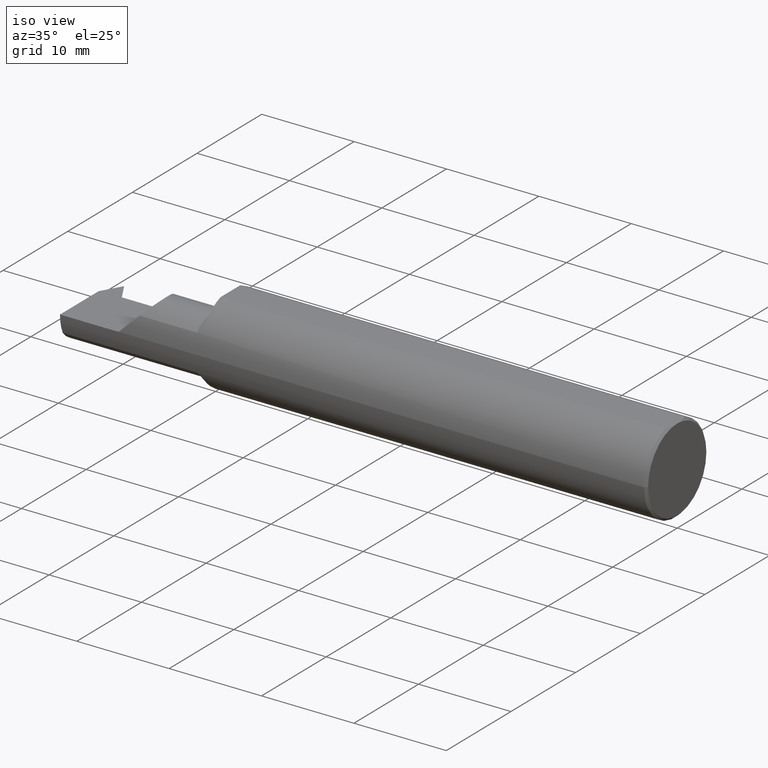
[diagram: clean part render]
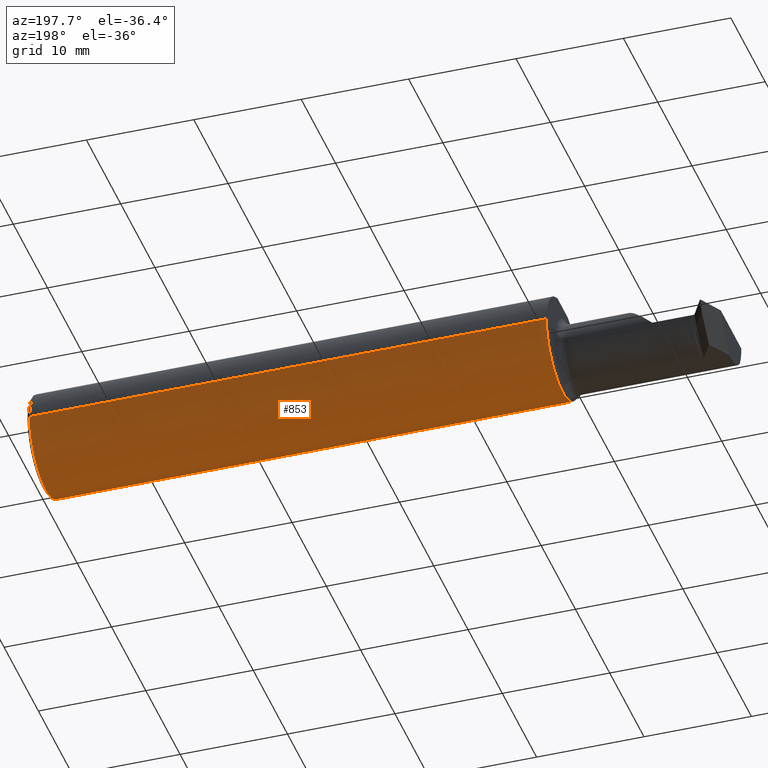
[diagram: tour spotlight — one face highlighted and labeled with its STEP entity id]
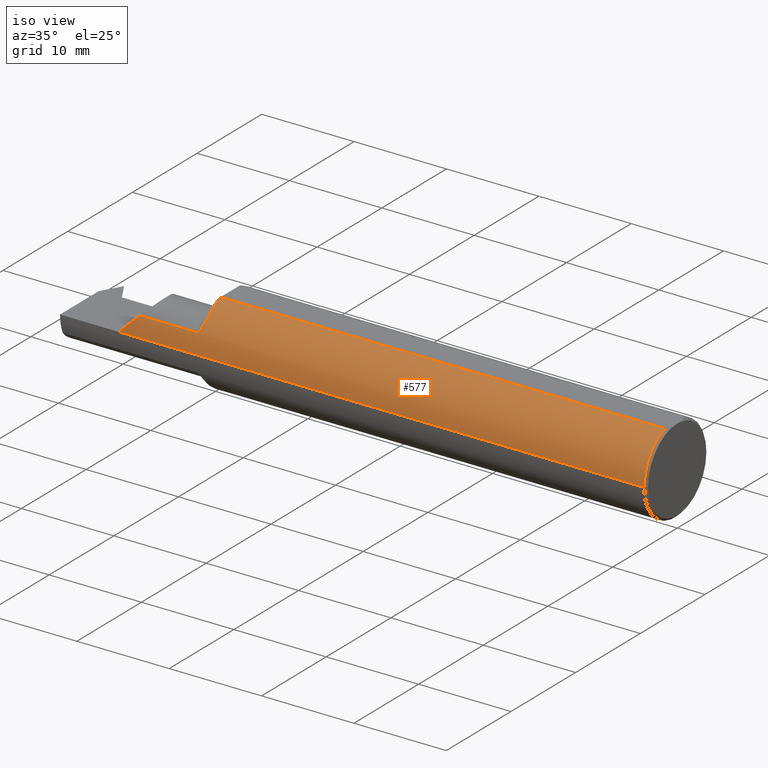
[diagram: tour spotlight — one face highlighted and labeled with its STEP entity id]
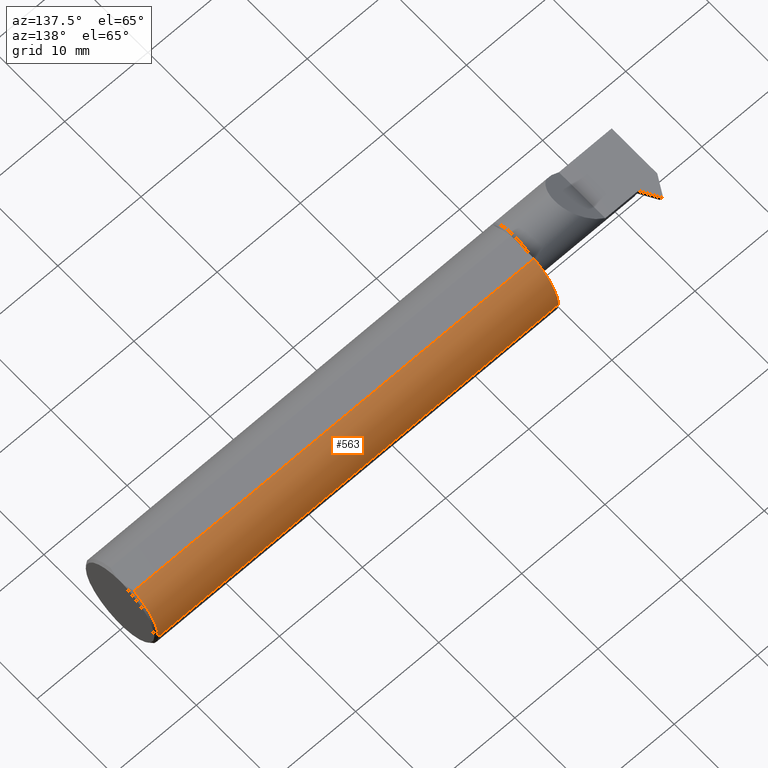
[diagram: tour spotlight — one face highlighted and labeled with its STEP entity id]
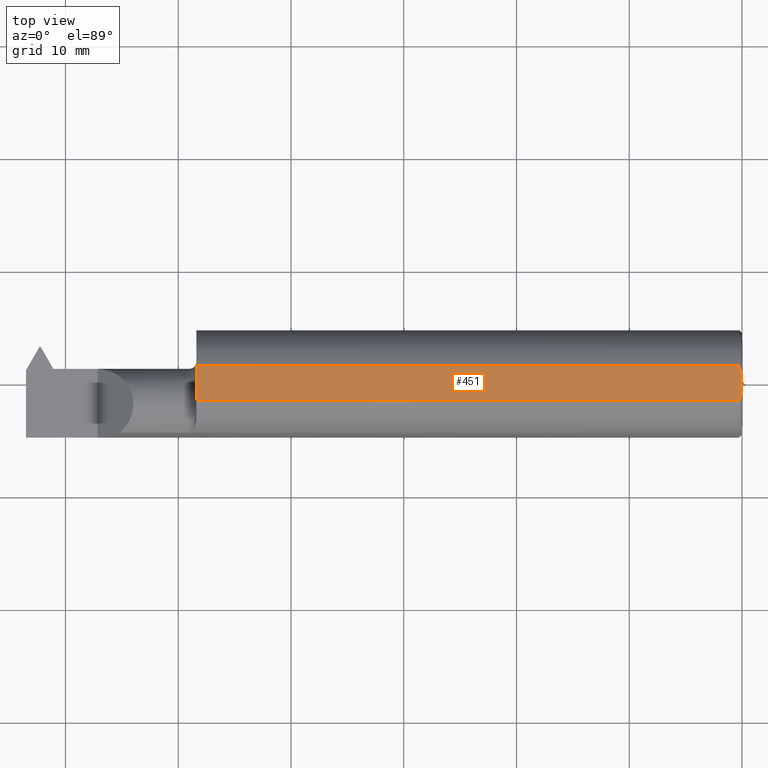
[diagram: tour spotlight — one face highlighted and labeled with its STEP entity id]
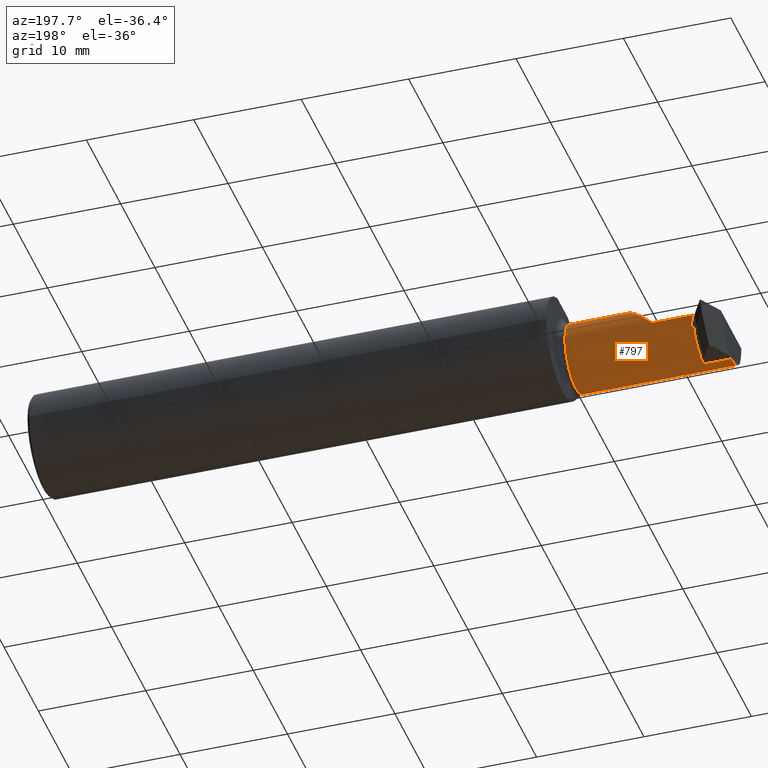
[diagram: tour spotlight — one face highlighted and labeled with its STEP entity id]
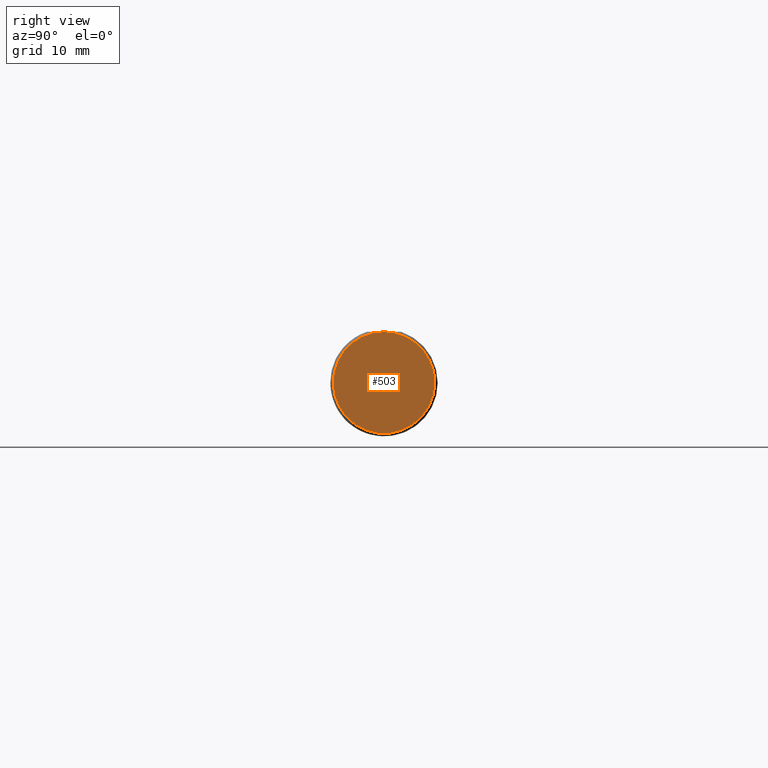
[diagram: tour spotlight — one face highlighted and labeled with its STEP entity id]
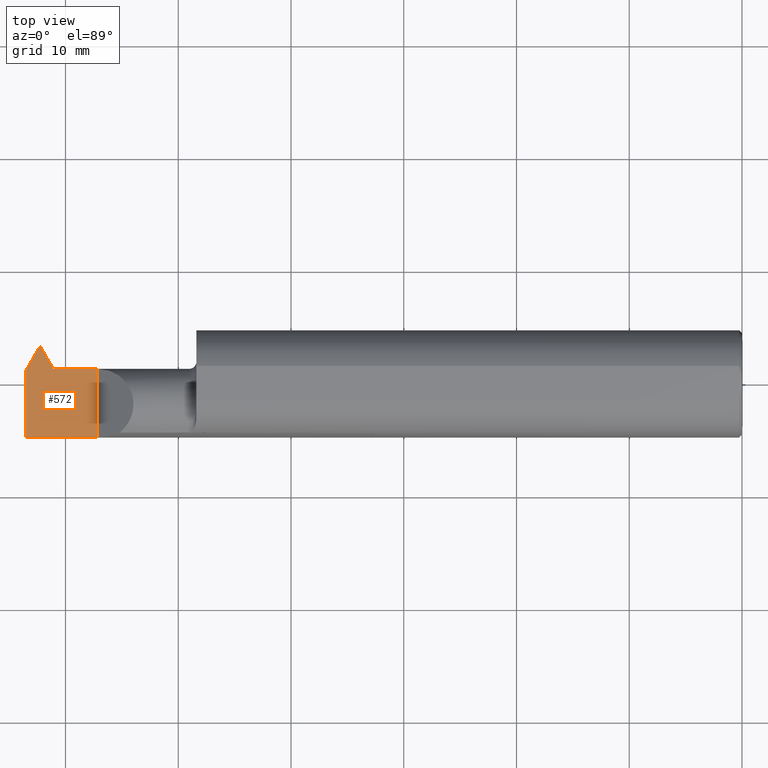
[diagram: tour spotlight — one face highlighted and labeled with its STEP entity id]
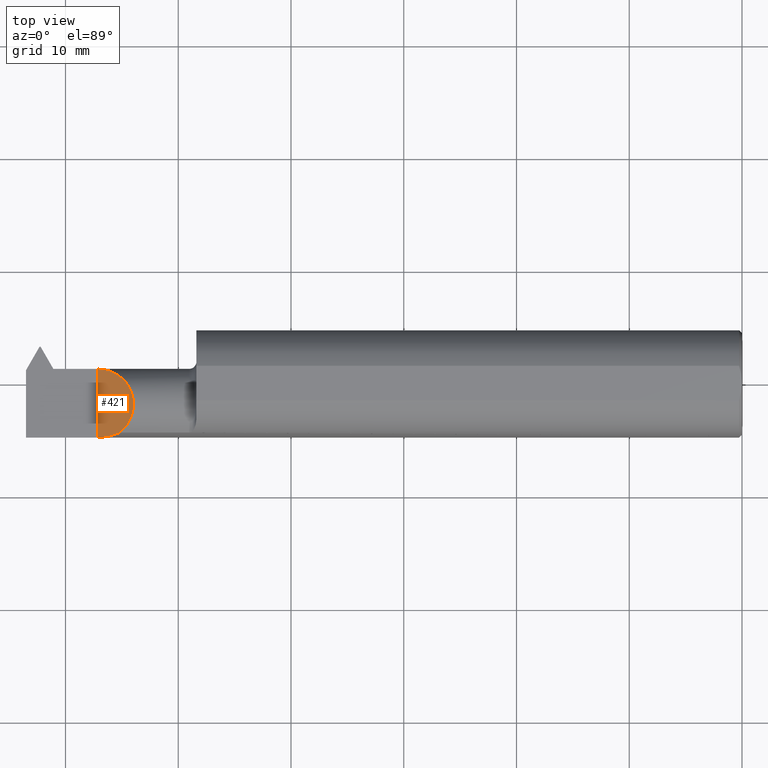
[diagram: tour spotlight — one face highlighted and labeled with its STEP entity id]
A machine part: a face-by-face anatomy tour. The part has 26 B-rep faces; the first image is the clean iso view, then the 8 largest visible faces are spotlighted one at a time (largest first), each with its STEP entity span.

Face 1 — auxiliary view, entity #853. In plain terms, the highlighted cylindrical surface (partial cylindrical patch) has radius 4.7587 mm, axis along (1, 0, -0).
Definition (entity closure, byte-faithful):
#17 = LINE ( 'NONE', #350, #774 ) ;
#32 = CARTESIAN_POINT ( 'NONE',  ( -1.904999999999999805, -0.1232518659295084307, -0.1410992560040428556 ) ) ;
#66 = CARTESIAN_POINT ( 'NONE',  ( -2.500000000000000000, -0.1873499999999999055, 0.000000000000000000 ) ) ;
#68 = EDGE_CURVE ( 'NONE', #420, #519, #17, .T. ) ;
#86 = DIRECTION ( 'NONE',  ( -1.253099476677462854E-16, 1.000000000000000000, 0.000000000000000000 ) ) ;
#98 = VERTEX_POINT ( 'NONE', #215 ) ;
#105 = CYLINDRICAL_SURFACE ( 'NONE', #871, 0.1873499999999999610 ) ;
#108 = VERTEX_POINT ( 'NONE', #116 ) ;
#110 = DIRECTION ( 'NONE',  ( 1.000000000000000000, 1.224646799147352961E-16, -0.000000000000000000 ) ) ;
#115 = DIRECTION ( 'NONE',  ( 1.000000000000000000, 1.224646799147352961E-16, -0.000000000000000000 ) ) ;
#116 = CARTESIAN_POINT ( 'NONE',  ( -2.500000000000000000, -0.1707639599170693301, -0.07706940050007840548 ) ) ;
#123 = EDGE_LOOP ( 'NONE', ( #428, #514, #457, #168, #539, #377, #680, #658 ) ) ;
#130 = CARTESIAN_POINT ( 'NONE',  ( -1.905000000000000027, 0.1873500000000000998, 0.000000000000000000 ) ) ;
#133 = AXIS2_PLACEMENT_3D ( 'NONE', #599, #531, #722 ) ;
#135 = EDGE_CURVE ( 'NONE', #487, #434, #712, .T. ) ;
#138 = B_SPLINE_CURVE_WITH_KNOTS ( 'NONE', 3,
 ( #660, #264, #800, #470, #150, #373, #368, #628, #689, #233, #506, #238, #425, #32 ),
 .UNSPECIFIED., .F., .F.,
 ( 4, 2, 2, 2, 2, 2, 4 ),
 ( 1.958244471940280644E-07, 0.0001405465607227724594, 0.0002808972969983508845, 0.0005615987695495095779, 0.001123001714651824905, 0.001684404659754138497, 0.002245807604856452089 ),
 .UNSPECIFIED. ) ;
#150 = CARTESIAN_POINT ( 'NONE',  ( -1.922400974074067737, -0.1687571032453834829, -0.08138423029642506690 ) ) ;
#165 = DIRECTION ( 'NONE',  ( 1.000000000000000000, 1.224646799147352961E-16, -0.000000000000000000 ) ) ;
#168 = ORIENTED_EDGE ( 'NONE', *, *, #276, .T. ) ;
#179 = DIRECTION ( 'NONE',  ( 1.000000000000000000, 1.224646799147352961E-16, -0.000000000000000000 ) ) ;
#212 = LINE ( 'NONE', #340, #775 ) ;
#215 = CARTESIAN_POINT ( 'NONE',  ( -1.904999999999999805, -0.1232518659295084307, -0.1410992560040428556 ) ) ;
#225 = DIRECTION ( 'NONE',  ( 1.000000000000000000, 1.224646799147352961E-16, -0.000000000000000000 ) ) ;
#233 = CARTESIAN_POINT ( 'NONE',  ( -1.908205059584734853, -0.1482131682563414821, -0.1148178553395529794 ) ) ;
#238 = CARTESIAN_POINT ( 'NONE',  ( -1.905422262237692621, -0.1340112273051913550, -0.1311235663431501164 ) ) ;
#255 = CARTESIAN_POINT ( 'NONE',  ( -2.500000000000000000, -0.1873499999999998777, 0.000000000000000000 ) ) ;
#264 = CARTESIAN_POINT ( 'NONE',  ( -1.928119110118878154, -0.1707639599170689415, -0.07706940050007909937 ) ) ;
#276 = EDGE_CURVE ( 'NONE', #108, #752, #212, .T. ) ;
#293 = FACE_OUTER_BOUND ( 'NONE', #123, .T. ) ;
#298 = AXIS2_PLACEMENT_3D ( 'NONE', #380, #115, #315 ) ;
#315 = DIRECTION ( 'NONE',  ( 0.000000000000000000, 1.000000000000000000, 0.000000000000000000 ) ) ;
#340 = CARTESIAN_POINT ( 'NONE',  ( -2.164733339501604625, -0.1707639599170691636, -0.07706940050007879406 ) ) ;
#350 = CARTESIAN_POINT ( 'NONE',  ( -2.500000000000000000, 0.1873500000000000165, 0.000000000000000000 ) ) ;
#351 = VERTEX_POINT ( 'NONE', #66 ) ;
#368 = CARTESIAN_POINT ( 'NONE',  ( -1.917677439423819186, -0.1652001307534595731, -0.08843250989739148693 ) ) ;
#373 = CARTESIAN_POINT ( 'NONE',  ( -1.919262760687378888, -0.1667342482336280352, -0.08549289042268606864 ) ) ;
#377 = ORIENTED_EDGE ( 'NONE', *, *, #731, .T. ) ;
#380 = CARTESIAN_POINT ( 'NONE',  ( -2.500000000000000000, 6.123233995736767268E-17, 0.000000000000000000 ) ) ;
#395 = CARTESIAN_POINT ( 'NONE',  ( -1.929999999999999938, -0.1707639599170691913, -0.07706940050007884957 ) ) ;
#416 = AXIS2_PLACEMENT_3D ( 'NONE', #693, #835, #86 ) ;
#420 = VERTEX_POINT ( 'NONE', #130 ) ;
#425 = CARTESIAN_POINT ( 'NONE',  ( -1.904999999999999805, -0.1287560726697994373, -0.1362912664340397428 ) ) ;
#428 = ORIENTED_EDGE ( 'NONE', *, *, #135, .F. ) ;
#434 = VERTEX_POINT ( 'NONE', #444 ) ;
#443 = VECTOR ( 'NONE', #179, 39.37007874015748143 ) ;
#444 = CARTESIAN_POINT ( 'NONE',  ( -0.009999999999999049580, -0.1873499999999995724, 2.294375778202565406E-17 ) ) ;
#457 = ORIENTED_EDGE ( 'NONE', *, *, #661, .T. ) ;
#470 = CARTESIAN_POINT ( 'NONE',  ( -1.923556805690881832, -0.1693764864286278760, -0.08008164902639260119 ) ) ;
#487 = VERTEX_POINT ( 'NONE', #830 ) ;
#488 = VECTOR ( 'NONE', #110, 39.37007874015748143 ) ;
#506 = CARTESIAN_POINT ( 'NONE',  ( -1.907029206695644241, -0.1437271265854049851, -0.1203948162417847467 ) ) ;
#511 = CARTESIAN_POINT ( 'NONE',  ( -0.009999999999999096417, 0.1873500000000003218, 0.000000000000000000 ) ) ;
#514 = ORIENTED_EDGE ( 'NONE', *, *, #670, .F. ) ;
#517 = CIRCLE ( 'NONE', #133, 0.1873499999999999610 ) ;
#519 = VERTEX_POINT ( 'NONE', #511 ) ;
#531 = DIRECTION ( 'NONE',  ( 1.000000000000000000, -7.807390513315893590E-17, 0.000000000000000000 ) ) ;
#539 = ORIENTED_EDGE ( 'NONE', *, *, #753, .T. ) ;
#545 = DIRECTION ( 'NONE',  ( 1.000000000000000000, -7.807390513315893590E-17, 0.000000000000000000 ) ) ;
#564 = CARTESIAN_POINT ( 'NONE',  ( -2.500000000000000000, 6.123233995736767268E-17, 0.000000000000000000 ) ) ;
#599 = CARTESIAN_POINT ( 'NONE',  ( -1.905000000000000027, 1.340988245066351874E-16, 0.000000000000000000 ) ) ;
#628 = CARTESIAN_POINT ( 'NONE',  ( -1.913468400737659447, -0.1602664485539591621, -0.09726338467661345411 ) ) ;
#658 = ORIENTED_EDGE ( 'NONE', *, *, #811, .T. ) ;
#660 = CARTESIAN_POINT ( 'NONE',  ( -1.929999999999999938, -0.1707639599170691913, -0.07706940050007884957 ) ) ;
#661 = EDGE_CURVE ( 'NONE', #351, #108, #679, .T. ) ;
#670 = EDGE_CURVE ( 'NONE', #351, #487, #845, .T. ) ;
#679 = CIRCLE ( 'NONE', #298, 0.1873499999999999888 ) ;
#680 = ORIENTED_EDGE ( 'NONE', *, *, #68, .T. ) ;
#689 = CARTESIAN_POINT ( 'NONE',  ( -1.911433375423613912, -0.1564664892255278605, -0.1032885322714718335 ) ) ;
#693 = CARTESIAN_POINT ( 'NONE',  ( -0.009999999999999073866, 3.661693929450587103E-16, 0.000000000000000000 ) ) ;
#712 = LINE ( 'NONE', #779, #443 ) ;
#722 = DIRECTION ( 'NONE',  ( 0.000000000000000000, -1.000000000000000000, 0.000000000000000000 ) ) ;
#731 = EDGE_CURVE ( 'NONE', #98, #420, #517, .T. ) ;
#752 = VERTEX_POINT ( 'NONE', #395 ) ;
#753 = EDGE_CURVE ( 'NONE', #752, #98, #138, .T. ) ;
#774 = VECTOR ( 'NONE', #225, 39.37007874015748143 ) ;
#775 = VECTOR ( 'NONE', #545, 39.37007874015748143 ) ;
#779 = CARTESIAN_POINT ( 'NONE',  ( -2.500000000000000000, -0.1873499999999998777, 2.294375778202565406E-17 ) ) ;
#800 = CARTESIAN_POINT ( 'NONE',  ( -1.926405426802838328, -0.1703891633079893664, -0.07790377200685998094 ) ) ;
#811 = EDGE_CURVE ( 'NONE', #519, #434, #834, .T. ) ;
#829 = DIRECTION ( 'NONE',  ( 0.000000000000000000, 1.000000000000000000, 0.000000000000000000 ) ) ;
#830 = CARTESIAN_POINT ( 'NONE',  ( -2.250000000000000000, -0.1873499999999998500, 0.000000000000000000 ) ) ;
#834 = CIRCLE ( 'NONE', #416, 0.1873499999999999610 ) ;
#835 = DIRECTION ( 'NONE',  ( -1.000000000000000000, -1.224646799147319927E-16, 0.000000000000000000 ) ) ;
#845 = LINE ( 'NONE', #255, #488 ) ;
#853 = ADVANCED_FACE ( 'NONE', ( #293 ), #105, .T. ) ;
#871 = AXIS2_PLACEMENT_3D ( 'NONE', #564, #165, #829 ) ;

Face 2 — iso view, entity #577. In plain terms, the highlighted cylindrical surface (partial cylindrical patch) has radius 4.7587 mm, axis along (1, 0, -0).
Definition (entity closure, byte-faithful):
#7 = FACE_OUTER_BOUND ( 'NONE', #329, .T. ) ;
#8 = LINE ( 'NONE', #831, #665 ) ;
#81 = EDGE_CURVE ( 'NONE', #529, #806, #8, .T. ) ;
#90 = EDGE_CURVE ( 'NONE', #347, #755, #352, .T. ) ;
#92 = CARTESIAN_POINT ( 'NONE',  ( -1.929999999999999938, -0.1707639599170692191, 0.07706940050007880794 ) ) ;
#93 = EDGE_CURVE ( 'NONE', #529, #347, #286, .T. ) ;
#135 = EDGE_CURVE ( 'NONE', #487, #434, #712, .T. ) ;
#146 = CARTESIAN_POINT ( 'NONE',  ( -1.911440222444131587, -0.1564830431723812088, 0.1032649757824542214 ) ) ;
#148 = CARTESIAN_POINT ( 'NONE',  ( -1.922416064253384294, -0.1687648201645036150, 0.08136796075313709742 ) ) ;
#163 = ORIENTED_EDGE ( 'NONE', *, *, #135, .T. ) ;
#174 = CIRCLE ( 'NONE', #667, 0.1873499999999999610 ) ;
#175 = ORIENTED_EDGE ( 'NONE', *, *, #93, .T. ) ;
#179 = DIRECTION ( 'NONE',  ( 1.000000000000000000, 1.224646799147352961E-16, -0.000000000000000000 ) ) ;
#207 = CARTESIAN_POINT ( 'NONE',  ( -2.172930599499919957, -0.1707639599170690525, 0.07706940050007902998 ) ) ;
#210 = CARTESIAN_POINT ( 'NONE',  ( -2.164733339501604625, -0.1707639599170691636, 0.07706940050007879406 ) ) ;
#218 = CARTESIAN_POINT ( 'NONE',  ( -1.904999999999999805, -0.1232518659284810858, 0.1410992560044134758 ) ) ;
#231 = CARTESIAN_POINT ( 'NONE',  ( -1.917693213531850960, -0.1652178096906200544, 0.08840046645041858830 ) ) ;
#236 = EDGE_CURVE ( 'NONE', #487, #408, #397, .T. ) ;
#246 = CARTESIAN_POINT ( 'NONE',  ( -2.172930599499919957, -0.1707639599170690525, 0.07706940050007902998 ) ) ;
#280 = CYLINDRICAL_SURFACE ( 'NONE', #807, 0.1873499999999999610 ) ;
#281 = DIRECTION ( 'NONE',  ( 1.000000000000000000, -7.807390513315893590E-17, 0.000000000000000000 ) ) ;
#282 = DIRECTION ( 'NONE',  ( 0.000000000000000000, 1.000000000000000000, 0.000000000000000000 ) ) ;
#285 = EDGE_CURVE ( 'NONE', #755, #408, #808, .T. ) ;
#286 = CIRCLE ( 'NONE', #402, 0.1873499999999999610 ) ;
#311 = CARTESIAN_POINT ( 'NONE',  ( -2.223323963392672908, -0.1873499999999998222, 0.02667603660732679668 ) ) ;
#329 = EDGE_LOOP ( 'NONE', ( #718, #163, #499, #669, #175, #555, #602 ) ) ;
#347 = VERTEX_POINT ( 'NONE', #672 ) ;
#352 = B_SPLINE_CURVE_WITH_KNOTS ( 'NONE', 3,
 ( #218, #419, #554, #819, #354, #146, #751, #231, #694, #148, #422, #360, #498, #92 ),
 .UNSPECIFIED., .F., .F.,
 ( 4, 2, 2, 2, 2, 2, 4 ),
 ( 0.0003577765748898353057, 0.0009104683997785904381, 0.001463160224667345516, 0.002015852049556100378, 0.002292197962000478133, 0.002430370918222667445, 0.002568543874444856323 ),
 .UNSPECIFIED. ) ;
#354 = CARTESIAN_POINT ( 'NONE',  ( -1.908201226339375722, -0.1482043182641873125, 0.1148306495308967501 ) ) ;
#360 = CARTESIAN_POINT ( 'NONE',  ( -1.926415813383503428, -0.1703907533020775078, 0.07790009962036281710 ) ) ;
#385 = DIRECTION ( 'NONE',  ( -1.000000000000000000, -1.224646799147319927E-16, 0.000000000000000000 ) ) ;
#397 =( BOUNDED_CURVE ( )  B_SPLINE_CURVE ( 3, ( #647, #311, #846, #246 ),
 .UNSPECIFIED., .F., .T. ) 
 B_SPLINE_CURVE_WITH_KNOTS ( ( 4, 4 ),
 ( 4.712388980384689674, 5.136341099405675514 ),
 .UNSPECIFIED. ) 
 CURVE ( )  GEOMETRIC_REPRESENTATION_ITEM ( )  RATIONAL_B_SPLINE_CURVE ( ( 1.000000000000000000, 0.9850780508747846165, 0.9850780508747846165, 1.000000000000000000 ) ) 
 REPRESENTATION_ITEM ( '' )  );
#402 = AXIS2_PLACEMENT_3D ( 'NONE', #764, #281, #686 ) ;
#408 = VERTEX_POINT ( 'NONE', #207 ) ;
#419 = CARTESIAN_POINT ( 'NONE',  ( -1.904999999999960947, -0.1287237903461468103, 0.1363194654249251236 ) ) ;
#422 = CARTESIAN_POINT ( 'NONE',  ( -1.923586104532882368, -0.1693889752090148026, 0.08005503987477412264 ) ) ;
#433 = DIRECTION ( 'NONE',  ( 1.000000000000000000, 1.224646799147352961E-16, -0.000000000000000000 ) ) ;
#434 = VERTEX_POINT ( 'NONE', #444 ) ;
#436 = CARTESIAN_POINT ( 'NONE',  ( -1.905000000000000027, -0.06039039658753646983, 0.1773500000000000909 ) ) ;
#443 = VECTOR ( 'NONE', #179, 39.37007874015748143 ) ;
#444 = CARTESIAN_POINT ( 'NONE',  ( -0.009999999999999049580, -0.1873499999999995724, 2.294375778202565406E-17 ) ) ;
#460 = DIRECTION ( 'NONE',  ( -1.253099476677462854E-16, 1.000000000000000000, 0.000000000000000000 ) ) ;
#483 = DIRECTION ( 'NONE',  ( 1.000000000000000000, 1.224646799147352961E-16, -0.000000000000000000 ) ) ;
#487 = VERTEX_POINT ( 'NONE', #830 ) ;
#495 = CARTESIAN_POINT ( 'NONE',  ( -1.929999999999999938, -0.1707639599170692191, 0.07706940050007880794 ) ) ;
#498 = CARTESIAN_POINT ( 'NONE',  ( -1.928129391043013285, -0.1707639599176941358, 0.07706940049869437370 ) ) ;
#499 = ORIENTED_EDGE ( 'NONE', *, *, #726, .T. ) ;
#516 = CARTESIAN_POINT ( 'NONE',  ( -0.009999999999999073866, 3.661693929450587103E-16, 0.000000000000000000 ) ) ;
#529 = VERTEX_POINT ( 'NONE', #436 ) ;
#552 = CARTESIAN_POINT ( 'NONE',  ( -2.500000000000000000, 6.123233995736767268E-17, 0.000000000000000000 ) ) ;
#554 = CARTESIAN_POINT ( 'NONE',  ( -1.905409339232163601, -0.1338927672609065977, 0.1312450467764069706 ) ) ;
#555 = ORIENTED_EDGE ( 'NONE', *, *, #90, .T. ) ;
#577 = ADVANCED_FACE ( 'NONE', ( #7 ), #280, .T. ) ;
#602 = ORIENTED_EDGE ( 'NONE', *, *, #285, .T. ) ;
#647 = CARTESIAN_POINT ( 'NONE',  ( -2.250000000000000000, -0.1873499999999998500, 0.000000000000000000 ) ) ;
#665 = VECTOR ( 'NONE', #433, 39.37007874015748143 ) ;
#667 = AXIS2_PLACEMENT_3D ( 'NONE', #516, #385, #460 ) ;
#669 = ORIENTED_EDGE ( 'NONE', *, *, #81, .F. ) ;
#672 = CARTESIAN_POINT ( 'NONE',  ( -1.904999999999999805, -0.1232518659284810858, 0.1410992560044134758 ) ) ;
#686 = DIRECTION ( 'NONE',  ( 0.000000000000000000, -1.000000000000000000, 1.776356839400250465E-15 ) ) ;
#694 = CARTESIAN_POINT ( 'NONE',  ( -1.919298956272738943, -0.1667615360002487890, 0.08543863798050066460 ) ) ;
#712 = LINE ( 'NONE', #779, #443 ) ;
#718 = ORIENTED_EDGE ( 'NONE', *, *, #236, .F. ) ;
#726 = EDGE_CURVE ( 'NONE', #434, #806, #174, .T. ) ;
#742 = DIRECTION ( 'NONE',  ( -1.000000000000000000, 7.807390513315893590E-17, -0.000000000000000000 ) ) ;
#751 = CARTESIAN_POINT ( 'NONE',  ( -1.913450250038202682, -0.1602467909268643353, 0.09729936756275239795 ) ) ;
#755 = VERTEX_POINT ( 'NONE', #495 ) ;
#764 = CARTESIAN_POINT ( 'NONE',  ( -1.905000000000000027, 1.340988245066351874E-16, 0.000000000000000000 ) ) ;
#779 = CARTESIAN_POINT ( 'NONE',  ( -2.500000000000000000, -0.1873499999999998777, 2.294375778202565406E-17 ) ) ;
#806 = VERTEX_POINT ( 'NONE', #839 ) ;
#807 = AXIS2_PLACEMENT_3D ( 'NONE', #552, #483, #282 ) ;
#808 = LINE ( 'NONE', #210, #863 ) ;
#819 = CARTESIAN_POINT ( 'NONE',  ( -1.907006704648573692, -0.1436305184912890776, 0.1205106202209912103 ) ) ;
#830 = CARTESIAN_POINT ( 'NONE',  ( -2.250000000000000000, -0.1873499999999998500, 0.000000000000000000 ) ) ;
#831 = CARTESIAN_POINT ( 'NONE',  ( -2.500000000000000000, -0.06039039658753654616, 0.1773500000000000909 ) ) ;
#839 = CARTESIAN_POINT ( 'NONE',  ( -0.009999999999999073866, -0.06039039658753624085, 0.1773500000000000909 ) ) ;
#846 = CARTESIAN_POINT ( 'NONE',  ( -2.197245014477021030, -0.1817375716013222009, 0.05275498552297823440 ) ) ;
#863 = VECTOR ( 'NONE', #742, 39.37007874015748143 ) ;

Face 3 — auxiliary view, entity #563. In plain terms, the highlighted cylindrical surface (partial cylindrical patch) has radius 4.7587 mm, axis along (1, 0, -0).
Definition (entity closure, byte-faithful):
#9 = EDGE_CURVE ( 'NONE', #567, #704, #158, .T. ) ;
#17 = LINE ( 'NONE', #350, #774 ) ;
#31 = ORIENTED_EDGE ( 'NONE', *, *, #129, .T. ) ;
#33 = CYLINDRICAL_SURFACE ( 'NONE', #50, 0.1873499999999999610 ) ;
#50 = AXIS2_PLACEMENT_3D ( 'NONE', #480, #413, #297 ) ;
#68 = EDGE_CURVE ( 'NONE', #420, #519, #17, .T. ) ;
#129 = EDGE_CURVE ( 'NONE', #420, #704, #216, .T. ) ;
#130 = CARTESIAN_POINT ( 'NONE',  ( -1.905000000000000027, 0.1873500000000000998, 0.000000000000000000 ) ) ;
#158 = LINE ( 'NONE', #287, #429 ) ;
#216 = CIRCLE ( 'NONE', #705, 0.1873499999999999610 ) ;
#225 = DIRECTION ( 'NONE',  ( 1.000000000000000000, 1.224646799147352961E-16, -0.000000000000000000 ) ) ;
#266 = DIRECTION ( 'NONE',  ( -1.253099476677462854E-16, 1.000000000000000000, -1.776356839400250465E-15 ) ) ;
#287 = CARTESIAN_POINT ( 'NONE',  ( -2.500000000000000000, 0.06039039658753661555, 0.1773500000000000909 ) ) ;
#297 = DIRECTION ( 'NONE',  ( 0.000000000000000000, 1.000000000000000000, 0.000000000000000000 ) ) ;
#339 = EDGE_CURVE ( 'NONE', #567, #519, #738, .T. ) ;
#350 = CARTESIAN_POINT ( 'NONE',  ( -2.500000000000000000, 0.1873500000000000165, 0.000000000000000000 ) ) ;
#388 = AXIS2_PLACEMENT_3D ( 'NONE', #657, #609, #266 ) ;
#413 = DIRECTION ( 'NONE',  ( 1.000000000000000000, 1.224646799147352961E-16, -0.000000000000000000 ) ) ;
#420 = VERTEX_POINT ( 'NONE', #130 ) ;
#429 = VECTOR ( 'NONE', #484, 39.37007874015748143 ) ;
#441 = CARTESIAN_POINT ( 'NONE',  ( -1.905000000000000027, 1.340988245066351874E-16, 0.000000000000000000 ) ) ;
#480 = CARTESIAN_POINT ( 'NONE',  ( -2.500000000000000000, 6.123233995736767268E-17, 0.000000000000000000 ) ) ;
#484 = DIRECTION ( 'NONE',  ( -1.000000000000000000, -1.224646799147352961E-16, 0.000000000000000000 ) ) ;
#511 = CARTESIAN_POINT ( 'NONE',  ( -0.009999999999999096417, 0.1873500000000003218, 0.000000000000000000 ) ) ;
#518 = DIRECTION ( 'NONE',  ( 1.000000000000000000, -7.807390513315893590E-17, 0.000000000000000000 ) ) ;
#519 = VERTEX_POINT ( 'NONE', #511 ) ;
#527 = CARTESIAN_POINT ( 'NONE',  ( -1.905000000000000027, 0.06039039658753692086, 0.1773500000000000909 ) ) ;
#542 = ORIENTED_EDGE ( 'NONE', *, *, #339, .T. ) ;
#550 = EDGE_LOOP ( 'NONE', ( #695, #31, #765, #542 ) ) ;
#563 = ADVANCED_FACE ( 'NONE', ( #708 ), #33, .T. ) ;
#567 = VERTEX_POINT ( 'NONE', #618 ) ;
#576 = DIRECTION ( 'NONE',  ( 0.000000000000000000, -1.000000000000000000, 0.000000000000000000 ) ) ;
#609 = DIRECTION ( 'NONE',  ( -1.000000000000000000, -1.224646799147319927E-16, 0.000000000000000000 ) ) ;
#618 = CARTESIAN_POINT ( 'NONE',  ( -0.009999999999999073866, 0.06039039658753692086, 0.1773500000000000909 ) ) ;
#657 = CARTESIAN_POINT ( 'NONE',  ( -0.009999999999999073866, 3.661693929450587103E-16, 0.000000000000000000 ) ) ;
#695 = ORIENTED_EDGE ( 'NONE', *, *, #68, .F. ) ;
#704 = VERTEX_POINT ( 'NONE', #527 ) ;
#705 = AXIS2_PLACEMENT_3D ( 'NONE', #441, #518, #576 ) ;
#708 = FACE_OUTER_BOUND ( 'NONE', #550, .T. ) ;
#738 = CIRCLE ( 'NONE', #388, 0.1873499999999999610 ) ;
#765 = ORIENTED_EDGE ( 'NONE', *, *, #9, .F. ) ;
#774 = VECTOR ( 'NONE', #225, 39.37007874015748143 ) ;

Face 4 — top view, entity #451. In plain terms, the highlighted planar face has unit normal (-0, 0, -1).
Definition (entity closure, byte-faithful):
#1 = EDGE_CURVE ( 'NONE', #529, #704, #619, .T. ) ;
#8 = LINE ( 'NONE', #831, #665 ) ;
#9 = EDGE_CURVE ( 'NONE', #567, #704, #158, .T. ) ;
#11 = PLANE ( 'NONE',  #76 ) ;
#29 = CARTESIAN_POINT ( 'NONE',  ( 5.167234455789520332E-16, -0.01026980879711896812, 0.1773500000000000909 ) ) ;
#36 = B_SPLINE_CURVE_WITH_KNOTS ( 'NONE', 3,
 ( #53, #235, #452, #102, #29, #40 ),
 .UNSPECIFIED., .F., .F.,
 ( 4, 2, 4 ),
 ( 0.001950265285394878808, 0.002725445821525868118, 0.003500626357656857861 ),
 .UNSPECIFIED. ) ;
#40 = CARTESIAN_POINT ( 'NONE',  ( -4.969808731120574713E-33, 3.199103279729614038E-16, 0.1773500000000000909 ) ) ;
#53 = CARTESIAN_POINT ( 'NONE',  ( -0.009999999999999073866, -0.06039039658753624085, 0.1773500000000000909 ) ) ;
#71 = ORIENTED_EDGE ( 'NONE', *, *, #9, .T. ) ;
#76 = AXIS2_PLACEMENT_3D ( 'NONE', #214, #682, #239 ) ;
#79 = FACE_OUTER_BOUND ( 'NONE', #593, .T. ) ;
#81 = EDGE_CURVE ( 'NONE', #529, #806, #8, .T. ) ;
#82 = CARTESIAN_POINT ( 'NONE',  ( -0.009999999999999073866, 0.06039039658753692086, 0.1773500000000000909 ) ) ;
#83 = CARTESIAN_POINT ( 'NONE',  ( -1.905000000000000027, 0.2123500000000001497, 0.1773500000000001187 ) ) ;
#102 = CARTESIAN_POINT ( 'NONE',  ( -0.0008974174807281316358, -0.02044204845470683207, 0.1773500000000000631 ) ) ;
#136 = CARTESIAN_POINT ( 'NONE',  ( -0.0009167640511158797918, 0.02059964124962108956, 0.1773500000000000909 ) ) ;
#158 = LINE ( 'NONE', #287, #429 ) ;
#184 = EDGE_CURVE ( 'NONE', #806, #267, #36, .T. ) ;
#214 = CARTESIAN_POINT ( 'NONE',  ( -2.500000000000000000, 0.2123500000000002053, 0.1773500000000001187 ) ) ;
#235 = CARTESIAN_POINT ( 'NONE',  ( -0.006863038267947818571, -0.05065855487579187105, 0.1773500000000001187 ) ) ;
#239 = DIRECTION ( 'NONE',  ( 0.000000000000000000, 1.000000000000000000, 1.608104540654733016E-16 ) ) ;
#267 = VERTEX_POINT ( 'NONE', #596 ) ;
#273 = CARTESIAN_POINT ( 'NONE',  ( -0.004345633232307596558, 0.04072602595449471841, 0.1773500000000000909 ) ) ;
#287 = CARTESIAN_POINT ( 'NONE',  ( -2.500000000000000000, 0.06039039658753661555, 0.1773500000000000909 ) ) ;
#424 = EDGE_CURVE ( 'NONE', #267, #567, #781, .T. ) ;
#429 = VECTOR ( 'NONE', #484, 39.37007874015748143 ) ;
#433 = DIRECTION ( 'NONE',  ( 1.000000000000000000, 1.224646799147352961E-16, -0.000000000000000000 ) ) ;
#436 = CARTESIAN_POINT ( 'NONE',  ( -1.905000000000000027, -0.06039039658753646983, 0.1773500000000000909 ) ) ;
#451 = ADVANCED_FACE ( 'NONE', ( #79 ), #11, .F. ) ;
#452 = CARTESIAN_POINT ( 'NONE',  ( -0.004318418993202934042, -0.04060972747957779933, 0.1773500000000001187 ) ) ;
#484 = DIRECTION ( 'NONE',  ( -1.000000000000000000, -1.224646799147352961E-16, 0.000000000000000000 ) ) ;
#527 = CARTESIAN_POINT ( 'NONE',  ( -1.905000000000000027, 0.06039039658753692086, 0.1773500000000000909 ) ) ;
#529 = VERTEX_POINT ( 'NONE', #436 ) ;
#541 = CARTESIAN_POINT ( 'NONE',  ( 5.248519605747486541E-16, 0.01028390533945653350, 0.1773500000000001187 ) ) ;
#546 = CARTESIAN_POINT ( 'NONE',  ( -0.006852151730285416242, 0.05062478141268297177, 0.1773500000000000909 ) ) ;
#561 = ORIENTED_EDGE ( 'NONE', *, *, #424, .T. ) ;
#567 = VERTEX_POINT ( 'NONE', #618 ) ;
#578 = ORIENTED_EDGE ( 'NONE', *, *, #1, .F. ) ;
#583 = VECTOR ( 'NONE', #629, 39.37007874015748143 ) ;
#593 = EDGE_LOOP ( 'NONE', ( #578, #725, #852, #561, #71 ) ) ;
#596 = CARTESIAN_POINT ( 'NONE',  ( -4.969808731120574713E-33, 3.199103279729614038E-16, 0.1773500000000000909 ) ) ;
#618 = CARTESIAN_POINT ( 'NONE',  ( -0.009999999999999073866, 0.06039039658753692086, 0.1773500000000000909 ) ) ;
#619 = LINE ( 'NONE', #83, #583 ) ;
#629 = DIRECTION ( 'NONE',  ( 7.807390513315893590E-17, 1.000000000000000000, 1.608104540654733016E-16 ) ) ;
#665 = VECTOR ( 'NONE', #433, 39.37007874015748143 ) ;
#682 = DIRECTION ( 'NONE',  ( -2.498191301712524670E-33, 1.608104540654733016E-16, -1.000000000000000000 ) ) ;
#704 = VERTEX_POINT ( 'NONE', #527 ) ;
#725 = ORIENTED_EDGE ( 'NONE', *, *, #81, .T. ) ;
#781 = B_SPLINE_CURVE_WITH_KNOTS ( 'NONE', 3,
 ( #868, #541, #136, #273, #546, #82 ),
 .UNSPECIFIED., .F., .F.,
 ( 4, 2, 4 ),
 ( 0.003500626357656857861, 0.004276870921898040870, 0.005053115486139223012 ),
 .UNSPECIFIED. ) ;
#806 = VERTEX_POINT ( 'NONE', #839 ) ;
#831 = CARTESIAN_POINT ( 'NONE',  ( -2.500000000000000000, -0.06039039658753654616, 0.1773500000000000909 ) ) ;
#839 = CARTESIAN_POINT ( 'NONE',  ( -0.009999999999999073866, -0.06039039658753624085, 0.1773500000000000909 ) ) ;
#852 = ORIENTED_EDGE ( 'NONE', *, *, #184, .T. ) ;
#868 = CARTESIAN_POINT ( 'NONE',  ( -4.969808731120574713E-33, 3.199103279729614038E-16, 0.1773500000000000909 ) ) ;

Face 5 — auxiliary view, entity #797. In plain terms, the highlighted cylindrical surface (edge-blend (fillet) strip) has radius 3.175 mm, axis along (-1, 0, -0).
Definition (entity closure, byte-faithful):
#12 = CARTESIAN_POINT ( 'NONE',  ( -2.399165208596790499, -0.07235000000000005316, 0.000000000000000000 ) ) ;
#24 =( BOUNDED_CURVE ( )  B_SPLINE_CURVE ( 3, ( #801, #199, #597, #467 ),
 .UNSPECIFIED., .F., .T. ) 
 B_SPLINE_CURVE_WITH_KNOTS ( ( 4, 4 ),
 ( 1.570796326794896780, 1.972222054753624221 ),
 .UNSPECIFIED. ) 
 CURVE ( )  GEOMETRIC_REPRESENTATION_ITEM ( )  RATIONAL_B_SPLINE_CURVE ( ( 1.000000000000000000, 0.9866164697472177281, 0.9866164697472177281, 1.000000000000000000 ) ) 
 REPRESENTATION_ITEM ( '' )  );
#34 = CARTESIAN_POINT ( 'NONE',  ( -2.500000000000000000, -0.07235000000000015030, -0.1250000000000000000 ) ) ;
#35 = EDGE_CURVE ( 'NONE', #607, #730, #192, .T. ) ;
#37 = ORIENTED_EDGE ( 'NONE', *, *, #35, .T. ) ;
#42 = VERTEX_POINT ( 'NONE', #294 ) ;
#49 = AXIS2_PLACEMENT_3D ( 'NONE', #12, #283, #427 ) ;
#55 = CARTESIAN_POINT ( 'NONE',  ( -2.399165208596790499, -0.03467546208265555319, -0.1191873701057063473 ) ) ;
#61 = VECTOR ( 'NONE', #523, 39.37007874015748143 ) ;
#108 = VERTEX_POINT ( 'NONE', #116 ) ;
#116 = CARTESIAN_POINT ( 'NONE',  ( -2.500000000000000000, -0.1707639599170693301, -0.07706940050007840548 ) ) ;
#117 = VERTEX_POINT ( 'NONE', #34 ) ;
#125 = CARTESIAN_POINT ( 'NONE',  ( -2.500000000000001332, 0.04271310668155354345, -0.04884139106116291984 ) ) ;
#127 = ORIENTED_EDGE ( 'NONE', *, *, #655, .F. ) ;
#128 = DIRECTION ( 'NONE',  ( 1.000000000000000000, -7.807390513315893590E-17, 0.000000000000000000 ) ) ;
#132 = AXIS2_PLACEMENT_3D ( 'NONE', #703, #447, #789 ) ;
#144 = VERTEX_POINT ( 'NONE', #587 ) ;
#151 = EDGE_CURVE ( 'NONE', #144, #117, #387, .T. ) ;
#192 = CIRCLE ( 'NONE', #49, 0.1250000000000001110 ) ;
#195 = VECTOR ( 'NONE', #325, 39.37007874015748143 ) ;
#196 = CIRCLE ( 'NONE', #299, 0.1250000000000000278 ) ;
#199 = CARTESIAN_POINT ( 'NONE',  ( -2.396040671537939648, 0.05265000000000007868, -0.01683936468141915971 ) ) ;
#203 = CARTESIAN_POINT ( 'NONE',  ( -2.389529785684763041, 0.04271310668155392509, -0.04884139106116304474 ) ) ;
#205 = EDGE_CURVE ( 'NONE', #755, #752, #611, .T. ) ;
#207 = CARTESIAN_POINT ( 'NONE',  ( -2.172930599499919957, -0.1707639599170690525, 0.07706940050007902998 ) ) ;
#210 = CARTESIAN_POINT ( 'NONE',  ( -2.164733339501604625, -0.1707639599170691636, 0.07706940050007879406 ) ) ;
#211 = ORIENTED_EDGE ( 'NONE', *, *, #205, .T. ) ;
#212 = LINE ( 'NONE', #340, #775 ) ;
#219 = ORIENTED_EDGE ( 'NONE', *, *, #690, .T. ) ;
#222 = VERTEX_POINT ( 'NONE', #768 ) ;
#243 = ORIENTED_EDGE ( 'NONE', *, *, #823, .T. ) ;
#245 = LINE ( 'NONE', #715, #706 ) ;
#260 = CARTESIAN_POINT ( 'NONE',  ( -2.106959123870335127, 0.05265000000000001623, 0.1430408761296632636 ) ) ;
#276 = EDGE_CURVE ( 'NONE', #108, #752, #212, .T. ) ;
#283 = DIRECTION ( 'NONE',  ( 1.000000000000000000, -0.000000000000000000, 0.000000000000000000 ) ) ;
#285 = EDGE_CURVE ( 'NONE', #755, #408, #808, .T. ) ;
#292 = ORIENTED_EDGE ( 'NONE', *, *, #717, .T. ) ;
#294 = CARTESIAN_POINT ( 'NONE',  ( -2.399466679003209091, 0.05264999999999994684, 0.000000000000000000 ) ) ;
#299 = AXIS2_PLACEMENT_3D ( 'NONE', #510, #435, #302 ) ;
#302 = DIRECTION ( 'NONE',  ( 0.000000000000000000, -1.000000000000000000, 0.000000000000000000 ) ) ;
#306 = CARTESIAN_POINT ( 'NONE',  ( -2.500000000000000000, -0.07235000000000005316, 0.000000000000000000 ) ) ;
#307 = DIRECTION ( 'NONE',  ( 0.000000000000000000, -1.000000000000000000, 0.000000000000000000 ) ) ;
#325 = DIRECTION ( 'NONE',  ( -1.000000000000000000, 7.807390513315893590E-17, -0.000000000000000000 ) ) ;
#340 = CARTESIAN_POINT ( 'NONE',  ( -2.164733339501604625, -0.1707639599170691636, -0.07706940050007879406 ) ) ;
#361 = ORIENTED_EDGE ( 'NONE', *, *, #649, .T. ) ;
#374 = CARTESIAN_POINT ( 'NONE',  ( -2.399466679003209091, -0.07235000000000005316, 0.000000000000000000 ) ) ;
#382 = EDGE_CURVE ( 'NONE', #42, #383, #24, .T. ) ;
#383 = VERTEX_POINT ( 'NONE', #203 ) ;
#387 = LINE ( 'NONE', #508, #61 ) ;
#391 = CARTESIAN_POINT ( 'NONE',  ( -2.500000000000000000, -0.03467546208265560870, -0.1191873701057062501 ) ) ;
#395 = CARTESIAN_POINT ( 'NONE',  ( -1.929999999999999938, -0.1707639599170691913, -0.07706940050007884957 ) ) ;
#401 = CARTESIAN_POINT ( 'NONE',  ( -2.172930599499919957, -0.1707639599170690525, 0.07706940050007902998 ) ) ;
#408 = VERTEX_POINT ( 'NONE', #207 ) ;
#423 = ORIENTED_EDGE ( 'NONE', *, *, #151, .F. ) ;
#427 = DIRECTION ( 'NONE',  ( 0.000000000000000000, 8.878505979408848064E-16, 1.000000000000000000 ) ) ;
#435 = DIRECTION ( 'NONE',  ( 1.000000000000000000, 1.553500558300393113E-17, -0.000000000000000000 ) ) ;
#447 = DIRECTION ( 'NONE',  ( -1.000000000000000000, 7.807390513315893590E-17, -0.000000000000000000 ) ) ;
#453 = VERTEX_POINT ( 'NONE', #702 ) ;
#467 = CARTESIAN_POINT ( 'NONE',  ( -2.389529785684763041, 0.04271310668155392509, -0.04884139106116304474 ) ) ;
#476 = AXIS2_PLACEMENT_3D ( 'NONE', #374, #836, #307 ) ;
#489 =( BOUNDED_CURVE ( )  B_SPLINE_CURVE ( 3, ( #788, #260, #580, #401 ),
 .UNSPECIFIED., .F., .T. ) 
 B_SPLINE_CURVE_WITH_KNOTS ( ( 4, 4 ),
 ( 1.570796326794896558, 4.048029203480151494 ),
 .UNSPECIFIED. ) 
 CURVE ( )  GEOMETRIC_REPRESENTATION_ITEM ( )  RATIONAL_B_SPLINE_CURVE ( ( 1.000000000000000000, 0.5507363490864372046, 0.5507363490864372046, 1.000000000000000000 ) ) 
 REPRESENTATION_ITEM ( '' )  );
#495 = CARTESIAN_POINT ( 'NONE',  ( -1.929999999999999938, -0.1707639599170692191, 0.07706940050007880794 ) ) ;
#508 = CARTESIAN_POINT ( 'NONE',  ( -2.300000000000000266, -0.07235000000000015030, -0.1250000000000000000 ) ) ;
#510 = CARTESIAN_POINT ( 'NONE',  ( -2.500000000000000000, -0.07235000000000006704, 0.000000000000000000 ) ) ;
#523 = DIRECTION ( 'NONE',  ( -1.000000000000000000, -1.553500558300393113E-17, -0.000000000000000000 ) ) ;
#544 = EDGE_CURVE ( 'NONE', #222, #144, #760, .T. ) ;
#545 = DIRECTION ( 'NONE',  ( 1.000000000000000000, -7.807390513315893590E-17, 0.000000000000000000 ) ) ;
#569 = AXIS2_PLACEMENT_3D ( 'NONE', #306, #636, #844 ) ;
#580 = CARTESIAN_POINT ( 'NONE',  ( -2.060312847100502331, -0.08257136335451528697, 0.1896871528994957812 ) ) ;
#587 = CARTESIAN_POINT ( 'NONE',  ( -2.399466679003209091, -0.07235000000000015030, -0.1250000000000000000 ) ) ;
#595 = LINE ( 'NONE', #391, #818 ) ;
#597 = CARTESIAN_POINT ( 'NONE',  ( -2.392683442184507570, 0.04929277064656736179, -0.03334067414286120967 ) ) ;
#607 = VERTEX_POINT ( 'NONE', #55 ) ;
#611 = CIRCLE ( 'NONE', #132, 0.1250000000000001665 ) ;
#636 = DIRECTION ( 'NONE',  ( -1.000000000000000000, 7.807390513315893590E-17, -0.000000000000000000 ) ) ;
#641 = CYLINDRICAL_SURFACE ( 'NONE', #569, 0.1250000000000001110 ) ;
#644 = ORIENTED_EDGE ( 'NONE', *, *, #285, .F. ) ;
#649 = EDGE_CURVE ( 'NONE', #453, #408, #489, .T. ) ;
#655 = EDGE_CURVE ( 'NONE', #383, #730, #711, .T. ) ;
#656 = DIRECTION ( 'NONE',  ( 1.000000000000000000, -7.807390513315893590E-17, 0.000000000000000000 ) ) ;
#690 = EDGE_CURVE ( 'NONE', #222, #607, #595, .T. ) ;
#702 = CARTESIAN_POINT ( 'NONE',  ( -2.250000000000000000, 0.05265000000000005093, 0.000000000000000000 ) ) ;
#703 = CARTESIAN_POINT ( 'NONE',  ( -1.929999999999999938, -0.07235000000000009479, 0.000000000000000000 ) ) ;
#706 = VECTOR ( 'NONE', #128, 39.37007874015748143 ) ;
#707 = FACE_OUTER_BOUND ( 'NONE', #743, .T. ) ;
#710 = ORIENTED_EDGE ( 'NONE', *, *, #544, .F. ) ;
#711 = LINE ( 'NONE', #125, #195 ) ;
#715 = CARTESIAN_POINT ( 'NONE',  ( -2.500000000000000000, 0.05265000000000005093, 0.000000000000000000 ) ) ;
#717 = EDGE_CURVE ( 'NONE', #42, #453, #245, .T. ) ;
#730 = VERTEX_POINT ( 'NONE', #858 ) ;
#742 = DIRECTION ( 'NONE',  ( -1.000000000000000000, 7.807390513315893590E-17, -0.000000000000000000 ) ) ;
#743 = EDGE_LOOP ( 'NONE', ( #219, #37, #127, #874, #292, #361, #644, #211, #827, #243, #423, #710 ) ) ;
#752 = VERTEX_POINT ( 'NONE', #395 ) ;
#755 = VERTEX_POINT ( 'NONE', #495 ) ;
#760 = CIRCLE ( 'NONE', #476, 0.1250000000000000278 ) ;
#768 = CARTESIAN_POINT ( 'NONE',  ( -2.399466679003209091, -0.03467546208265526175, -0.1191873701057060558 ) ) ;
#775 = VECTOR ( 'NONE', #545, 39.37007874015748143 ) ;
#788 = CARTESIAN_POINT ( 'NONE',  ( -2.250000000000000000, 0.05265000000000005093, 0.000000000000000000 ) ) ;
#789 = DIRECTION ( 'NONE',  ( 0.000000000000000000, -1.000000000000000000, 0.000000000000000000 ) ) ;
#797 = ADVANCED_FACE ( 'NONE', ( #707 ), #641, .T. ) ;
#801 = CARTESIAN_POINT ( 'NONE',  ( -2.399466679003209091, 0.05264999999999994684, 0.000000000000000000 ) ) ;
#808 = LINE ( 'NONE', #210, #863 ) ;
#818 = VECTOR ( 'NONE', #656, 39.37007874015748143 ) ;
#823 = EDGE_CURVE ( 'NONE', #108, #117, #196, .T. ) ;
#827 = ORIENTED_EDGE ( 'NONE', *, *, #276, .F. ) ;
#836 = DIRECTION ( 'NONE',  ( -1.000000000000000000, 7.807390513315893590E-17, -0.000000000000000000 ) ) ;
#844 = DIRECTION ( 'NONE',  ( 0.000000000000000000, -1.000000000000000000, 0.000000000000000000 ) ) ;
#858 = CARTESIAN_POINT ( 'NONE',  ( -2.399165208596790499, 0.04271310668155466755, -0.04884139106116108103 ) ) ;
#863 = VECTOR ( 'NONE', #742, 39.37007874015748143 ) ;
#874 = ORIENTED_EDGE ( 'NONE', *, *, #382, .F. ) ;

Face 6 — right view, entity #503. In plain terms, the highlighted planar face has unit normal (1, 0, -0).
Definition (entity closure, byte-faithful):
#39 = DIRECTION ( 'NONE',  ( -1.224646799147352961E-16, 1.000000000000000000, 0.000000000000000000 ) ) ;
#97 = CARTESIAN_POINT ( 'NONE',  ( 1.147187889101280084E-17, 3.673940397442058882E-16, 0.000000000000000000 ) ) ;
#106 = FACE_OUTER_BOUND ( 'NONE', #113, .T. ) ;
#113 = EDGE_LOOP ( 'NONE', ( #673, #295, #758 ) ) ;
#119 = AXIS2_PLACEMENT_3D ( 'NONE', #873, #411, #278 ) ;
#200 = VERTEX_POINT ( 'NONE', #462 ) ;
#209 = AXIS2_PLACEMENT_3D ( 'NONE', #349, #440, #39 ) ;
#220 = EDGE_CURVE ( 'NONE', #200, #654, #227, .T. ) ;
#227 = CIRCLE ( 'NONE', #652, 0.1773500000000004795 ) ;
#267 = VERTEX_POINT ( 'NONE', #596 ) ;
#278 = DIRECTION ( 'NONE',  ( -1.224646799147352961E-16, 1.000000000000000000, 0.000000000000000000 ) ) ;
#295 = ORIENTED_EDGE ( 'NONE', *, *, #220, .T. ) ;
#337 = DIRECTION ( 'NONE',  ( -1.224646799147352961E-16, 1.000000000000000000, 0.000000000000000000 ) ) ;
#341 = CARTESIAN_POINT ( 'NONE',  ( 1.147187889101280084E-17, 3.673940397442058882E-16, 0.000000000000000000 ) ) ;
#343 = CIRCLE ( 'NONE', #119, 0.1773500000000004795 ) ;
#344 = EDGE_CURVE ( 'NONE', #654, #267, #343, .T. ) ;
#348 = EDGE_CURVE ( 'NONE', #267, #200, #615, .T. ) ;
#349 = CARTESIAN_POINT ( 'NONE',  ( 1.147187889101284552E-17, 1.404899976408496659E-33, 0.000000000000000000 ) ) ;
#411 = DIRECTION ( 'NONE',  ( 1.000000000000000000, 1.224646799147352961E-16, -0.000000000000000000 ) ) ;
#440 = DIRECTION ( 'NONE',  ( 1.000000000000000000, 1.224646799147352961E-16, -0.000000000000000000 ) ) ;
#450 = CARTESIAN_POINT ( 'NONE',  ( -1.024723209186555973E-17, 0.1773500000000008403, 2.233143438245201271E-17 ) ) ;
#462 = CARTESIAN_POINT ( 'NONE',  ( 3.319098987389115832E-17, -0.1773500000000000909, 0.000000000000000000 ) ) ;
#503 = ADVANCED_FACE ( 'NONE', ( #106 ), #632, .T. ) ;
#596 = CARTESIAN_POINT ( 'NONE',  ( -4.969808731120574713E-33, 3.199103279729614038E-16, 0.1773500000000000909 ) ) ;
#615 = CIRCLE ( 'NONE', #832, 0.1773500000000004795 ) ;
#632 = PLANE ( 'NONE',  #209 ) ;
#652 = AXIS2_PLACEMENT_3D ( 'NONE', #97, #851, #772 ) ;
#654 = VERTEX_POINT ( 'NONE', #450 ) ;
#673 = ORIENTED_EDGE ( 'NONE', *, *, #348, .T. ) ;
#758 = ORIENTED_EDGE ( 'NONE', *, *, #344, .T. ) ;
#772 = DIRECTION ( 'NONE',  ( -1.224646799147352961E-16, 1.000000000000000000, 0.000000000000000000 ) ) ;
#805 = DIRECTION ( 'NONE',  ( 1.000000000000000000, 1.224646799147352961E-16, -0.000000000000000000 ) ) ;
#832 = AXIS2_PLACEMENT_3D ( 'NONE', #341, #805, #337 ) ;
#851 = DIRECTION ( 'NONE',  ( 1.000000000000000000, 1.224646799147352961E-16, -0.000000000000000000 ) ) ;
#873 = CARTESIAN_POINT ( 'NONE',  ( 1.147187889101280084E-17, 3.673940397442058882E-16, 0.000000000000000000 ) ) ;

Face 7 — top view, entity #572. In plain terms, the highlighted planar face has unit normal (0, 0, -1).
Definition (entity closure, byte-faithful):
#30 = AXIS2_PLACEMENT_3D ( 'NONE', #616, #697, #507 ) ;
#42 = VERTEX_POINT ( 'NONE', #294 ) ;
#44 = LINE ( 'NONE', #783, #600 ) ;
#47 = EDGE_CURVE ( 'NONE', #487, #453, #504, .T. ) ;
#56 = VERTEX_POINT ( 'NONE', #566 ) ;
#65 = DIRECTION ( 'NONE',  ( 1.000000000000000000, -7.807390513315893590E-17, 0.000000000000000000 ) ) ;
#66 = CARTESIAN_POINT ( 'NONE',  ( -2.500000000000000000, -0.1873499999999999055, 0.000000000000000000 ) ) ;
#110 = DIRECTION ( 'NONE',  ( 1.000000000000000000, 1.224646799147352961E-16, -0.000000000000000000 ) ) ;
#111 = EDGE_CURVE ( 'NONE', #56, #258, #300, .T. ) ;
#121 = DIRECTION ( 'NONE',  ( 0.5000000000000027756, -0.8660254037844370423, 0.000000000000000000 ) ) ;
#128 = DIRECTION ( 'NONE',  ( 1.000000000000000000, -7.807390513315893590E-17, 0.000000000000000000 ) ) ;
#155 = VECTOR ( 'NONE', #826, 39.37007874015748143 ) ;
#164 = EDGE_CURVE ( 'NONE', #185, #42, #716, .T. ) ;
#172 = VECTOR ( 'NONE', #183, 39.37007874015748143 ) ;
#183 = DIRECTION ( 'NONE',  ( 1.000000000000000000, 7.683322482180613419E-15, 0.000000000000000000 ) ) ;
#185 = VERTEX_POINT ( 'NONE', #316 ) ;
#190 = DIRECTION ( 'NONE',  ( 0.4999999999999895084, 0.8660254037844445918, 0.000000000000000000 ) ) ;
#245 = LINE ( 'NONE', #715, #706 ) ;
#255 = CARTESIAN_POINT ( 'NONE',  ( -2.500000000000000000, -0.1873499999999998777, 0.000000000000000000 ) ) ;
#256 = EDGE_CURVE ( 'NONE', #258, #614, #533, .T. ) ;
#258 = VERTEX_POINT ( 'NONE', #794 ) ;
#261 = ORIENTED_EDGE ( 'NONE', *, *, #717, .F. ) ;
#272 = CARTESIAN_POINT ( 'NONE',  ( -2.500000000000000000, 0.1306500000000000716, 0.000000000000000000 ) ) ;
#284 = ORIENTED_EDGE ( 'NONE', *, *, #670, .T. ) ;
#294 = CARTESIAN_POINT ( 'NONE',  ( -2.399466679003209091, 0.05264999999999994684, 0.000000000000000000 ) ) ;
#300 = LINE ( 'NONE', #375, #485 ) ;
#304 = CARTESIAN_POINT ( 'NONE',  ( -4.045269286869511293E-16, 0.05265000000001845981, 0.000000000000000000 ) ) ;
#305 = ORIENTED_EDGE ( 'NONE', *, *, #164, .F. ) ;
#310 = CARTESIAN_POINT ( 'NONE',  ( -2.449500000000000899, 0.1306500000000000439, 0.000000000000000000 ) ) ;
#316 = CARTESIAN_POINT ( 'NONE',  ( -2.404466679003209428, 0.05264999999999991215, 0.000000000000000000 ) ) ;
#338 = ORIENTED_EDGE ( 'NONE', *, *, #685, .F. ) ;
#351 = VERTEX_POINT ( 'NONE', #66 ) ;
#358 = DIRECTION ( 'NONE',  ( 1.224646799147352961E-16, -1.000000000000000000, 0.000000000000000000 ) ) ;
#370 = VECTOR ( 'NONE', #65, 39.37007874015748143 ) ;
#375 = CARTESIAN_POINT ( 'NONE',  ( -1.895948109502243684, 1.094626151390651891, 0.000000000000000000 ) ) ;
#432 = LINE ( 'NONE', #625, #723 ) ;
#453 = VERTEX_POINT ( 'NONE', #702 ) ;
#485 = VECTOR ( 'NONE', #190, 39.37007874015748854 ) ;
#487 = VERTEX_POINT ( 'NONE', #830 ) ;
#488 = VECTOR ( 'NONE', #110, 39.37007874015748143 ) ;
#494 = ORIENTED_EDGE ( 'NONE', *, *, #256, .F. ) ;
#504 = LINE ( 'NONE', #816, #155 ) ;
#507 = DIRECTION ( 'NONE',  ( -1.000000000000000000, 0.000000000000000000, -0.000000000000000000 ) ) ;
#533 = LINE ( 'NONE', #272, #370 ) ;
#535 = EDGE_LOOP ( 'NONE', ( #494, #759, #790, #284, #663, #261, #305, #338 ) ) ;
#566 = CARTESIAN_POINT ( 'NONE',  ( -2.500000000000000444, 0.04837758664047484003, 0.000000000000000000 ) ) ;
#572 = ADVANCED_FACE ( 'NONE', ( #744 ), #767, .F. ) ;
#600 = VECTOR ( 'NONE', #121, 39.37007874015748854 ) ;
#614 = VERTEX_POINT ( 'NONE', #310 ) ;
#616 = CARTESIAN_POINT ( 'NONE',  ( -2.500000000000000000, -0.2500000000000000000, 0.000000000000000000 ) ) ;
#625 = CARTESIAN_POINT ( 'NONE',  ( -2.500000000000000000, 6.123233995736767268E-17, 0.000000000000000000 ) ) ;
#663 = ORIENTED_EDGE ( 'NONE', *, *, #47, .T. ) ;
#670 = EDGE_CURVE ( 'NONE', #351, #487, #845, .T. ) ;
#685 = EDGE_CURVE ( 'NONE', #614, #185, #44, .T. ) ;
#697 = DIRECTION ( 'NONE',  ( 0.000000000000000000, 0.000000000000000000, -1.000000000000000000 ) ) ;
#702 = CARTESIAN_POINT ( 'NONE',  ( -2.250000000000000000, 0.05265000000000005093, 0.000000000000000000 ) ) ;
#706 = VECTOR ( 'NONE', #128, 39.37007874015748143 ) ;
#715 = CARTESIAN_POINT ( 'NONE',  ( -2.500000000000000000, 0.05265000000000005093, 0.000000000000000000 ) ) ;
#716 = LINE ( 'NONE', #304, #172 ) ;
#717 = EDGE_CURVE ( 'NONE', #42, #453, #245, .T. ) ;
#723 = VECTOR ( 'NONE', #358, 39.37007874015748143 ) ;
#744 = FACE_OUTER_BOUND ( 'NONE', #535, .T. ) ;
#759 = ORIENTED_EDGE ( 'NONE', *, *, #111, .F. ) ;
#767 = PLANE ( 'NONE',  #30 ) ;
#783 = CARTESIAN_POINT ( 'NONE',  ( -1.780551890497774625, -1.028002113284995023, 0.000000000000000000 ) ) ;
#790 = ORIENTED_EDGE ( 'NONE', *, *, #820, .T. ) ;
#794 = CARTESIAN_POINT ( 'NONE',  ( -2.452500000000000124, 0.1306499999999999884, 0.000000000000000000 ) ) ;
#816 = CARTESIAN_POINT ( 'NONE',  ( -2.250000000000000000, -0.2500000000000000000, 0.000000000000000000 ) ) ;
#820 = EDGE_CURVE ( 'NONE', #56, #351, #432, .T. ) ;
#826 = DIRECTION ( 'NONE',  ( -0.000000000000000000, 1.000000000000000000, -0.000000000000000000 ) ) ;
#830 = CARTESIAN_POINT ( 'NONE',  ( -2.250000000000000000, -0.1873499999999998500, 0.000000000000000000 ) ) ;
#845 = LINE ( 'NONE', #255, #488 ) ;

Face 8 — top view, entity #421. In plain terms, the highlighted planar face has unit normal (0.7071, 0, -0.7071).
Definition (entity closure, byte-faithful):
#47 = EDGE_CURVE ( 'NONE', #487, #453, #504, .T. ) ;
#70 = FACE_OUTER_BOUND ( 'NONE', #364, .T. ) ;
#155 = VECTOR ( 'NONE', #826, 39.37007874015748143 ) ;
#207 = CARTESIAN_POINT ( 'NONE',  ( -2.172930599499919957, -0.1707639599170690525, 0.07706940050007902998 ) ) ;
#236 = EDGE_CURVE ( 'NONE', #487, #408, #397, .T. ) ;
#246 = CARTESIAN_POINT ( 'NONE',  ( -2.172930599499919957, -0.1707639599170690525, 0.07706940050007902998 ) ) ;
#260 = CARTESIAN_POINT ( 'NONE',  ( -2.106959123870335127, 0.05265000000000001623, 0.1430408761296632636 ) ) ;
#311 = CARTESIAN_POINT ( 'NONE',  ( -2.223323963392672908, -0.1873499999999998222, 0.02667603660732679668 ) ) ;
#317 = ORIENTED_EDGE ( 'NONE', *, *, #236, .T. ) ;
#323 = ORIENTED_EDGE ( 'NONE', *, *, #47, .F. ) ;
#335 = ORIENTED_EDGE ( 'NONE', *, *, #649, .F. ) ;
#364 = EDGE_LOOP ( 'NONE', ( #335, #323, #317 ) ) ;
#397 =( BOUNDED_CURVE ( )  B_SPLINE_CURVE ( 3, ( #647, #311, #846, #246 ),
 .UNSPECIFIED., .F., .T. ) 
 B_SPLINE_CURVE_WITH_KNOTS ( ( 4, 4 ),
 ( 4.712388980384689674, 5.136341099405675514 ),
 .UNSPECIFIED. ) 
 CURVE ( )  GEOMETRIC_REPRESENTATION_ITEM ( )  RATIONAL_B_SPLINE_CURVE ( ( 1.000000000000000000, 0.9850780508747846165, 0.9850780508747846165, 1.000000000000000000 ) ) 
 REPRESENTATION_ITEM ( '' )  );
#401 = CARTESIAN_POINT ( 'NONE',  ( -2.172930599499919957, -0.1707639599170690525, 0.07706940050007902998 ) ) ;
#408 = VERTEX_POINT ( 'NONE', #207 ) ;
#421 = ADVANCED_FACE ( 'NONE', ( #70 ), #474, .F. ) ;
#430 = AXIS2_PLACEMENT_3D ( 'NONE', #739, #809, #606 ) ;
#453 = VERTEX_POINT ( 'NONE', #702 ) ;
#474 = PLANE ( 'NONE',  #430 ) ;
#487 = VERTEX_POINT ( 'NONE', #830 ) ;
#489 =( BOUNDED_CURVE ( )  B_SPLINE_CURVE ( 3, ( #788, #260, #580, #401 ),
 .UNSPECIFIED., .F., .T. ) 
 B_SPLINE_CURVE_WITH_KNOTS ( ( 4, 4 ),
 ( 1.570796326794896558, 4.048029203480151494 ),
 .UNSPECIFIED. ) 
 CURVE ( )  GEOMETRIC_REPRESENTATION_ITEM ( )  RATIONAL_B_SPLINE_CURVE ( ( 1.000000000000000000, 0.5507363490864372046, 0.5507363490864372046, 1.000000000000000000 ) ) 
 REPRESENTATION_ITEM ( '' )  );
#504 = LINE ( 'NONE', #816, #155 ) ;
#580 = CARTESIAN_POINT ( 'NONE',  ( -2.060312847100502331, -0.08257136335451528697, 0.1896871528994957812 ) ) ;
#606 = DIRECTION ( 'NONE',  ( -0.7071067811865513475, 0.000000000000000000, -0.7071067811865435759 ) ) ;
#647 = CARTESIAN_POINT ( 'NONE',  ( -2.250000000000000000, -0.1873499999999998500, 0.000000000000000000 ) ) ;
#649 = EDGE_CURVE ( 'NONE', #453, #408, #489, .T. ) ;
#702 = CARTESIAN_POINT ( 'NONE',  ( -2.250000000000000000, 0.05265000000000005093, 0.000000000000000000 ) ) ;
#739 = CARTESIAN_POINT ( 'NONE',  ( -2.250000000000000000, -0.2500000000000000000, 0.000000000000000000 ) ) ;
#788 = CARTESIAN_POINT ( 'NONE',  ( -2.250000000000000000, 0.05265000000000005093, 0.000000000000000000 ) ) ;
#809 = DIRECTION ( 'NONE',  ( 0.7071067811865436870, 0.000000000000000000, -0.7071067811865514585 ) ) ;
#816 = CARTESIAN_POINT ( 'NONE',  ( -2.250000000000000000, -0.2500000000000000000, 0.000000000000000000 ) ) ;
#826 = DIRECTION ( 'NONE',  ( -0.000000000000000000, 1.000000000000000000, -0.000000000000000000 ) ) ;
#830 = CARTESIAN_POINT ( 'NONE',  ( -2.250000000000000000, -0.1873499999999998500, 0.000000000000000000 ) ) ;
#846 = CARTESIAN_POINT ( 'NONE',  ( -2.197245014477021030, -0.1817375716013222009, 0.05275498552297823440 ) ) ;